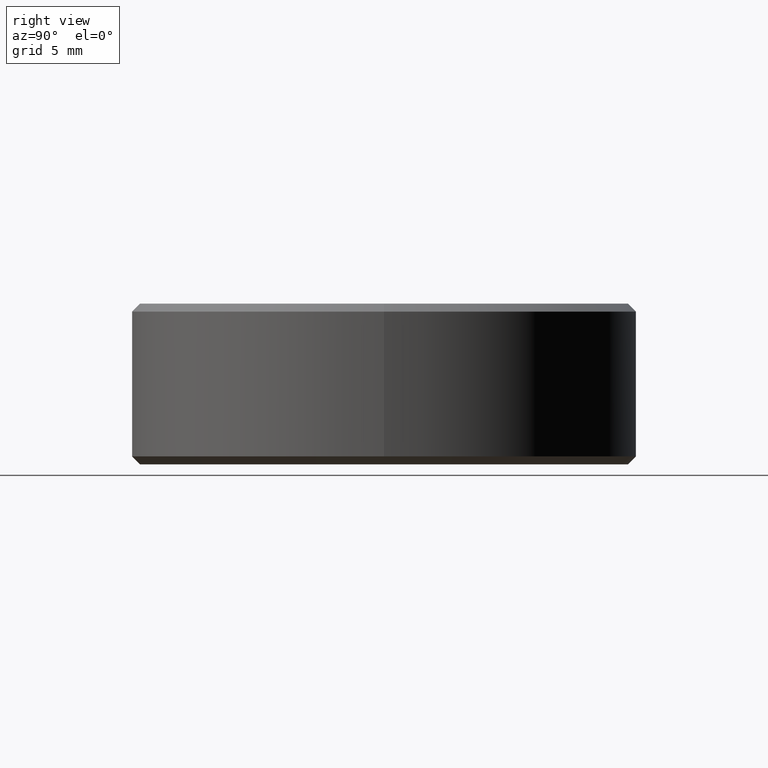
[diagram: clean part render]
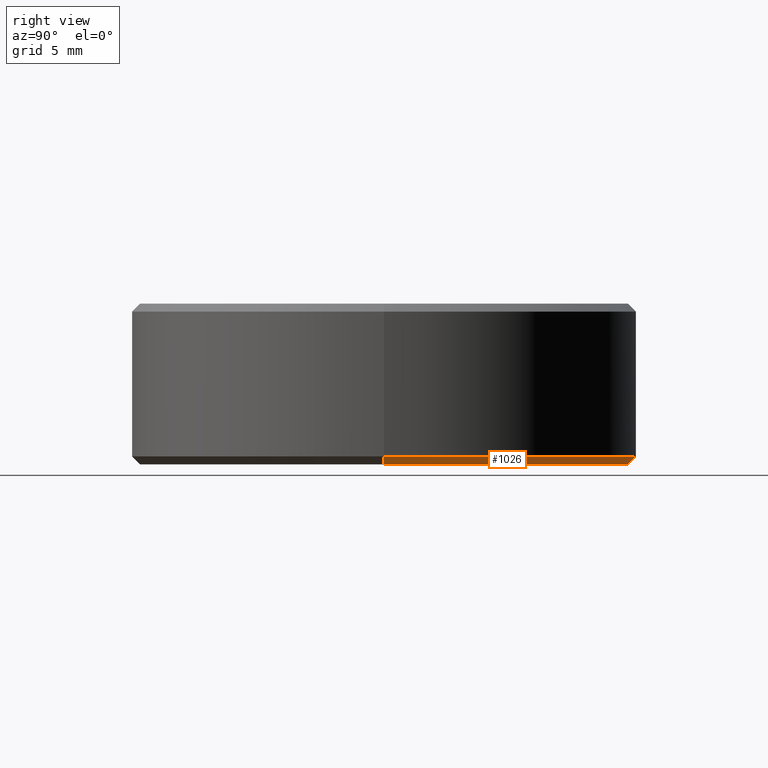
[diagram: same view with one face highlighted and labeled with its STEP entity id]
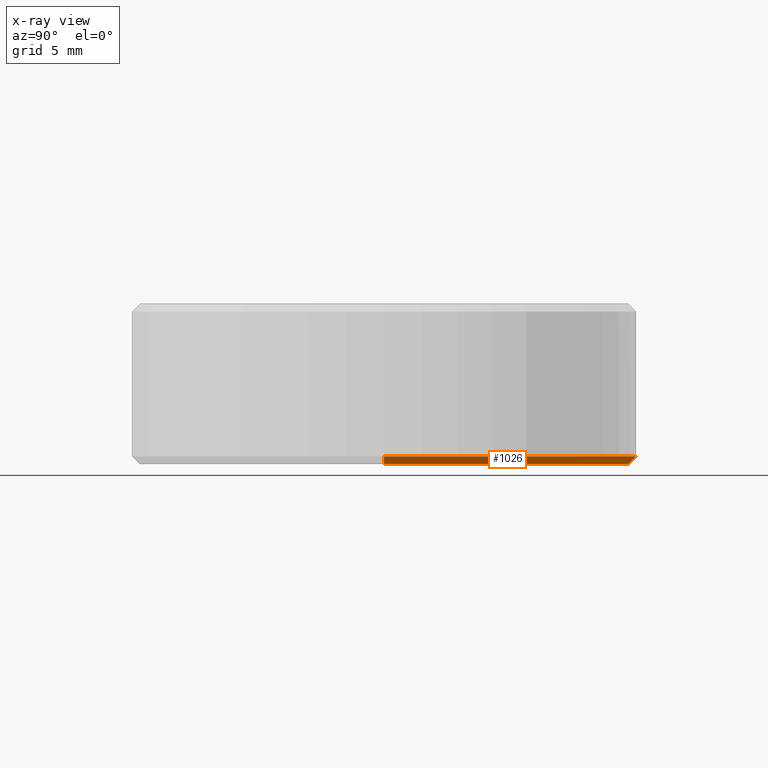
[diagram: x-ray of the same camera — body ghosted, the highlighted face saturated]
A machine part, right view. The second image highlights one B-rep face of the part: STEP entity #1026.
The next image is the same camera in x-ray: the body ghosted, the highlighted face saturated — about 0% of this face is hidden behind the body in this view.
In plain terms, the highlighted conical surface has half-angle 45 deg.
Its self-contained STEP definition (entity closure, byte-faithful):
#27 = DIRECTION ( 'NONE',  ( 1.000000000000000000, 0.0000000000000000000, 0.0000000000000000000 ) ) ;
#92 = VERTEX_POINT ( 'NONE', #1724 ) ;
#227 = CARTESIAN_POINT ( 'NONE',  ( 0.0000000000000000000, 0.0000000000000000000, -0.2187500000000001388 ) ) ;
#337 = VERTEX_POINT ( 'NONE', #1918 ) ;
#373 = AXIS2_PLACEMENT_3D ( 'NONE', #2335, #1576, #2148 ) ;
#390 = EDGE_CURVE ( 'NONE', #1702, #337, #1418, .T. ) ;
#396 = CARTESIAN_POINT ( 'NONE',  ( 0.6656250000000001332, 0.0000000000000000000, -0.2187500000000001388 ) ) ;
#431 = EDGE_CURVE ( 'NONE', #92, #337, #652, .T. ) ;
#466 = DIRECTION ( 'NONE',  ( -0.7071067811865463515, 8.659560562354918067E-17, 0.7071067811865486830 ) ) ;
#539 = ORIENTED_EDGE ( 'NONE', *, *, #431, .T. ) ;
#652 = LINE ( 'NONE', #1389, #1611 ) ;
#654 = EDGE_LOOP ( 'NONE', ( #1416, #539, #2007, #1757 ) ) ;
#709 = CARTESIAN_POINT ( 'NONE',  ( 0.6656250000000001332, 0.0000000000000000000, -0.2187500000000001388 ) ) ;
#817 = FACE_OUTER_BOUND ( 'NONE', #654, .T. ) ;
#841 = CARTESIAN_POINT ( 'NONE',  ( 0.6875000000000000000, 0.0000000000000000000, -0.1968750000000001610 ) ) ;
#996 = DIRECTION ( 'NONE',  ( 1.000000000000000000, 0.0000000000000000000, 0.0000000000000000000 ) ) ;
#1026 = ADVANCED_FACE ( 'NONE', ( #817 ), #2048, .T. ) ;
#1050 = AXIS2_PLACEMENT_3D ( 'NONE', #1695, #1896, #27 ) ;
#1110 = EDGE_CURVE ( 'NONE', #2248, #1702, #2090, .T. ) ;
#1350 = AXIS2_PLACEMENT_3D ( 'NONE', #227, #1535, #996 ) ;
#1389 = CARTESIAN_POINT ( 'NONE',  ( -0.6656250000000001332, 8.151555256824570378E-17, -0.2187500000000001388 ) ) ;
#1416 = ORIENTED_EDGE ( 'NONE', *, *, #1437, .T. ) ;
#1418 = CIRCLE ( 'NONE', #373, 0.6875000000000000000 ) ;
#1437 = EDGE_CURVE ( 'NONE', #2248, #92, #2406, .T. ) ;
#1535 = DIRECTION ( 'NONE',  ( -0.0000000000000000000, -0.0000000000000000000, 1.000000000000000000 ) ) ;
#1576 = DIRECTION ( 'NONE',  ( -0.0000000000000000000, -0.0000000000000000000, 1.000000000000000000 ) ) ;
#1611 = VECTOR ( 'NONE', #466, 39.37007874015748143 ) ;
#1695 = CARTESIAN_POINT ( 'NONE',  ( 0.0000000000000000000, 0.0000000000000000000, -0.2187500000000001388 ) ) ;
#1702 = VERTEX_POINT ( 'NONE', #841 ) ;
#1724 = CARTESIAN_POINT ( 'NONE',  ( -0.6656250000000001332, 8.285501000481311454E-17, -0.2187500000000001388 ) ) ;
#1757 = ORIENTED_EDGE ( 'NONE', *, *, #1110, .F. ) ;
#1896 = DIRECTION ( 'NONE',  ( -0.0000000000000000000, -0.0000000000000000000, 1.000000000000000000 ) ) ;
#1918 = CARTESIAN_POINT ( 'NONE',  ( -0.6875000000000000000, 8.419446744138052529E-17, -0.1968750000000001610 ) ) ;
#2007 = ORIENTED_EDGE ( 'NONE', *, *, #390, .F. ) ;
#2014 = VECTOR ( 'NONE', #2281, 39.37007874015748143 ) ;
#2048 = CONICAL_SURFACE ( 'NONE', #1050, 0.6656250000000001332, 0.7853981633974466137 ) ;
#2090 = LINE ( 'NONE', #396, #2014 ) ;
#2148 = DIRECTION ( 'NONE',  ( 1.000000000000000000, 0.0000000000000000000, 0.0000000000000000000 ) ) ;
#2248 = VERTEX_POINT ( 'NONE', #709 ) ;
#2281 = DIRECTION ( 'NONE',  ( 0.7071067811865463515, 0.0000000000000000000, 0.7071067811865486830 ) ) ;
#2335 = CARTESIAN_POINT ( 'NONE',  ( 0.0000000000000000000, 0.0000000000000000000, -0.1968750000000001610 ) ) ;
#2406 = CIRCLE ( 'NONE', #1350, 0.6656250000000001332 ) ;